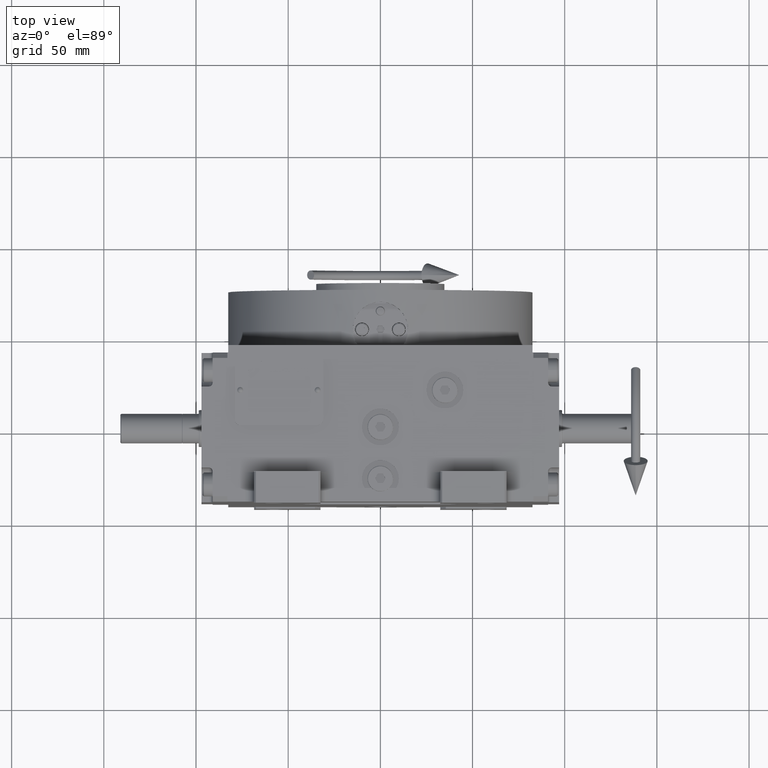
[diagram: clean part render]
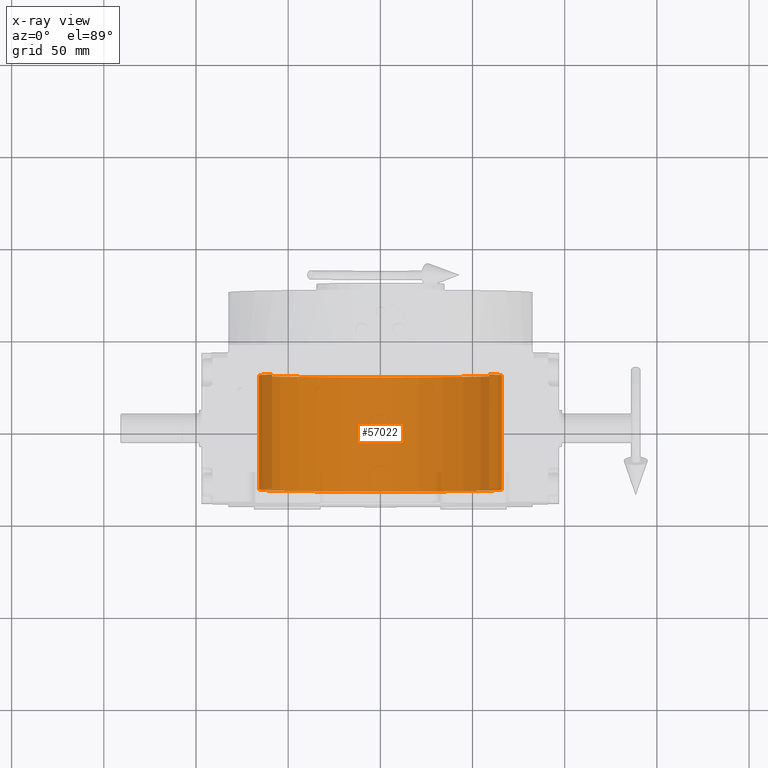
[diagram: x-ray — body ghosted, one internal face saturated and labeled with its STEP entity id]
A machine part, top view, then the same camera in x-ray: the body is ghosted and one INTERNAL B-rep face — a face not visible from any outside direction — is saturated and labeled: STEP entity #57022.
In plain terms, the highlighted cylindrical surface (partial cylindrical patch) has radius 66 mm, axis along (0, 1, 0).
Its self-contained STEP definition (entity closure, byte-faithful):
#3430 = DIRECTION ( 'NONE',  ( -0.000000000000000000, 1.000000000000000000, -0.000000000000000000 ) ) ;
#3936 = EDGE_CURVE ( 'NONE', #36503, #10492, #53736, .T. ) ;
#4701 = CARTESIAN_POINT ( 'NONE',  ( 58.78775382679628336, 30.00000000000001421, 30.00000000000000000 ) ) ;
#6516 = EDGE_CURVE ( 'NONE', #10492, #55421, #56698, .T. ) ;
#7815 = VECTOR ( 'NONE', #33760, 1000.000000000000000 ) ;
#10492 = VERTEX_POINT ( 'NONE', #55796 ) ;
#14015 = CARTESIAN_POINT ( 'NONE',  ( 58.78775382679628336, 98.15000000000000568, 30.00000000000000000 ) ) ;
#19742 = EDGE_CURVE ( 'NONE', #33723, #55421, #32434, .T. ) ;
#20936 = CARTESIAN_POINT ( 'NONE',  ( 0.000000000000000000, -31.99999999999998579, 0.000000000000000000 ) ) ;
#21486 = DIRECTION ( 'NONE',  ( 0.000000000000000000, -1.000000000000000000, 0.000000000000000000 ) ) ;
#21764 = EDGE_CURVE ( 'NONE', #33723, #36503, #63790, .T. ) ;
#25879 = AXIS2_PLACEMENT_3D ( 'NONE', #29192, #38896, #47644 ) ;
#28025 = CYLINDRICAL_SURFACE ( 'NONE', #51153, 66.00000000000000000 ) ;
#29192 = CARTESIAN_POINT ( 'NONE',  ( 0.000000000000000000, 30.00000000000001421, 0.000000000000000000 ) ) ;
#31956 = VECTOR ( 'NONE', #21486, 1000.000000000000000 ) ;
#32434 = CIRCLE ( 'NONE', #47925, 66.00000000000000000 ) ;
#33492 = DIRECTION ( 'NONE',  ( 0.000000000000000000, 0.000000000000000000, 1.000000000000000000 ) ) ;
#33723 = VERTEX_POINT ( 'NONE', #42831 ) ;
#33760 = DIRECTION ( 'NONE',  ( -0.000000000000000000, 1.000000000000000000, -0.000000000000000000 ) ) ;
#34655 = ORIENTED_EDGE ( 'NONE', *, *, #19742, .F. ) ;
#36503 = VERTEX_POINT ( 'NONE', #4701 ) ;
#38896 = DIRECTION ( 'NONE',  ( -0.000000000000000000, 1.000000000000000000, -0.000000000000000000 ) ) ;
#39051 = CARTESIAN_POINT ( 'NONE',  ( -58.78775382679628336, -31.99999999999998579, 30.00000000000000000 ) ) ;
#40674 = DIRECTION ( 'NONE',  ( 0.000000000000000000, 0.000000000000000000, 1.000000000000000000 ) ) ;
#42831 = CARTESIAN_POINT ( 'NONE',  ( 58.78775382679628336, -31.99999999999998579, 30.00000000000000000 ) ) ;
#43204 = FACE_OUTER_BOUND ( 'NONE', #60887, .T. ) ;
#44277 = ORIENTED_EDGE ( 'NONE', *, *, #21764, .T. ) ;
#47425 = CARTESIAN_POINT ( 'NONE',  ( 0.000000000000000000, 98.15000000000000568, 0.000000000000000000 ) ) ;
#47644 = DIRECTION ( 'NONE',  ( 0.000000000000000000, 0.000000000000000000, 1.000000000000000000 ) ) ;
#47925 = AXIS2_PLACEMENT_3D ( 'NONE', #20936, #60065, #40674 ) ;
#48835 = ORIENTED_EDGE ( 'NONE', *, *, #3936, .T. ) ;
#51153 = AXIS2_PLACEMENT_3D ( 'NONE', #47425, #3430, #33492 ) ;
#51548 = CARTESIAN_POINT ( 'NONE',  ( -58.78775382679628336, 98.15000000000000568, 30.00000000000000000 ) ) ;
#53736 = CIRCLE ( 'NONE', #25879, 66.00000000000000000 ) ;
#55421 = VERTEX_POINT ( 'NONE', #39051 ) ;
#55796 = CARTESIAN_POINT ( 'NONE',  ( -58.78775382679628336, 30.00000000000001421, 30.00000000000000000 ) ) ;
#56698 = LINE ( 'NONE', #51548, #31956 ) ;
#57022 = ADVANCED_FACE ( 'NONE', ( #43204 ), #28025, .F. ) ;
#60065 = DIRECTION ( 'NONE',  ( -0.000000000000000000, 1.000000000000000000, -0.000000000000000000 ) ) ;
#60447 = ORIENTED_EDGE ( 'NONE', *, *, #6516, .T. ) ;
#60887 = EDGE_LOOP ( 'NONE', ( #60447, #34655, #44277, #48835 ) ) ;
#63790 = LINE ( 'NONE', #14015, #7815 ) ;